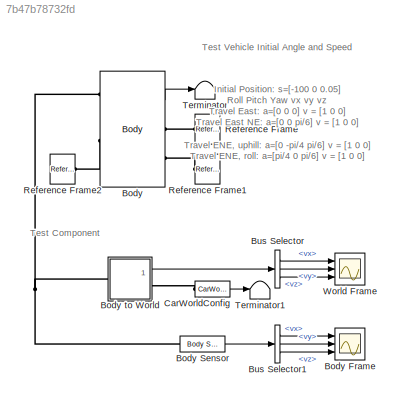
MODEL slx_7b47b78732fd
KIND model
CONFIG AbsTol = auto
CONFIG EnableMultiTasking = off
CONFIG FixedStep = auto
CONFIG InitFcn = Chassis = Vehicle.Chassis
CONFIG MaxStep = 0.01
CONFIG MinStep = auto
CONFIG RelTol = 1e-3
CONFIG SampleTimeConstraint = Unconstrained
CONFIG SolverName = VariableStepAuto
CONFIG StartTime = 0.0
CONFIG StopTime = 10.0
BLOCK [Reference] Body  REF=Body_Axle2/Body
  Ports = [0, 1, 0, 0, 0, 4, 2]
  SourceBlock = Body_Axle2/Body
  SourceType = Body
BLOCK [Scope] Body Frame
  Floating = off
  NumInputPorts = 3
  Ports = [3]
  ScopeSpecificationString = Simulink.scopes.TimeScopeBlockCfg('CurrentConfiguration', extmgr.ConfigurationSet(extmgr.Configuration('Core','General UI',true),extmgr.Configuration('Core','Source UI',true),extmgr.Configuration('Sources','WiredSimulink',true,'DataLoggingVariableName','ScopeData1'),extmgr.Configuration('Visuals','Time Domain',true,'SerializedDisplays',{struct('MinYLimReal','-1.125','MaxYLimReal','1.125','YLabelRe...<+1439ch>
BLOCK [Reference] Body Sensor  REF=sm_car_lib/Sensors/Body Sensor  (lib defined in slx_05426f0848b6, slx_5dc2867fb1c9)
  Ports = [0, 1, 0, 0, 0, 1]
  SourceBlock = sm_car_lib/Sensors/Body Sensor
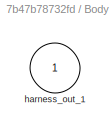
BLOCK [SubSystem] Body to World
  Ports = [0, 1, 0, 0, 0, 1, 1]
  RequestExecContextInheritance = off
  Tag = __SL_testing_harness_stub_
BLOCK [Outport] Body to World/harness_out_1
  VectorParamsAs1DForOutWhenUnconnected = off
BLOCK [BusSelector] Bus Selector
  OutputSignals = vx,vy,vz
  Ports = [1, 3]
BLOCK [BusSelector] Bus Selector1
  OutputSignals = vx,vy,vz
  Ports = [1, 3]
BLOCK [Reference] CarWorldConfig  REF=sm_car_lib/Environment/CarWorldConfig  (lib defined in slx_05426f0848b6, slx_5dc2867fb1c9)
  Ports = [0, 1, 0, 0, 0, 1]
  SourceBlock = sm_car_lib/Environment/CarWorldConfig
  SourceType = Environment
BLOCK [Reference] Reference Frame  REF=sm_lib/Frames and
Transforms/Reference
Frame
  NameLocation = top
  Ports = [0, 0, 0, 0, 0, 0, 1]
  SourceBlock = sm_lib/Frames and\nTransforms/Reference\nFrame
  SourceProductBaseCode = MS
  SourceType = Reference\nFrame
BLOCK [Reference] Reference Frame1  REF=sm_lib/Frames and
Transforms/Reference
Frame
  NameLocation = top
  Ports = [0, 0, 0, 0, 0, 0, 1]
  SourceBlock = sm_lib/Frames and\nTransforms/Reference\nFrame
  SourceProductBaseCode = MS
  SourceType = Reference\nFrame
BLOCK [Reference] Reference Frame2  REF=sm_lib/Frames and
Transforms/Reference
Frame
  NameLocation = top
  Ports = [0, 0, 0, 0, 0, 0, 1]
  SourceBlock = sm_lib/Frames and\nTransforms/Reference\nFrame
  SourceProductBaseCode = MS
  SourceType = Reference\nFrame
BLOCK [Terminator] Terminator
BLOCK [Terminator] Terminator1
BLOCK [Scope] World Frame
  Floating = off
  NumInputPorts = 3
  Ports = [3]
  ScopeSpecificationString = Simulink.scopes.TimeScopeBlockCfg('CurrentConfiguration', extmgr.ConfigurationSet(extmgr.Configuration('Core','General UI',true),extmgr.Configuration('Core','Source UI',true),extmgr.Configuration('Sources','WiredSimulink',true),extmgr.Configuration('Visuals','Time Domain',true,'SerializedDisplays',{struct('MinYLimReal','-1.125','MaxYLimReal','1.125','YLabelReal','','MinYLimMag','0.00000','MaxYLimM...<+1402ch>
ANNOTATION (root): Initial Position: s=[-100 0 0.05] Roll Pitch Yaw vx vy vz Travel East: a=[0 0 0] v = [1 0 0] Travel East NE: a=[0 0 pi/6] v = [1 0 0] Travel ENE, uphill: a=[0 -pi/4 pi/6] v = [1 0 0] Travel ENE, roll: a=[pi/4 0 pi/6] v = [1 0 0] Point ENE, slide left a=[0 0 pi/6] v = [0 1 0]
ANNOTATION (root): Test Component
ANNOTATION (root): Test Vehicle Initial Angle and Speed
LINE Body Sensor:1 -> Bus Selector1:1
LINE Body to World:1 -> Bus Selector:1
LINE Body:1 -> Terminator:1
LINE Bus Selector1:1 -> Body Frame:1
LINE Bus Selector1:2 -> Body Frame:2
LINE Bus Selector1:3 -> Body Frame:3
LINE Bus Selector:1 -> World Frame:1
LINE Bus Selector:2 -> World Frame:2
LINE Bus Selector:3 -> World Frame:3
LINE CarWorldConfig:1 -> Terminator1:1
PNET net1: Body Sensor:LConn1 -- Body to World:LConn1 -- Body:LConn1
PLINE Body to World:RConn1 -- CarWorldConfig:LConn1
PLINE Body:LConn3 -- Reference Frame2:RConn1
PLINE Body:RConn1 -- Reference Frame:RConn1
PLINE Body:RConn2 -- Reference Frame1:RConn1
note: PNET lines group multi-terminal physical nets as a canonical sorted terminal list (undirected conserving connections); 2-terminal nets keep the pairwise PLINE form
